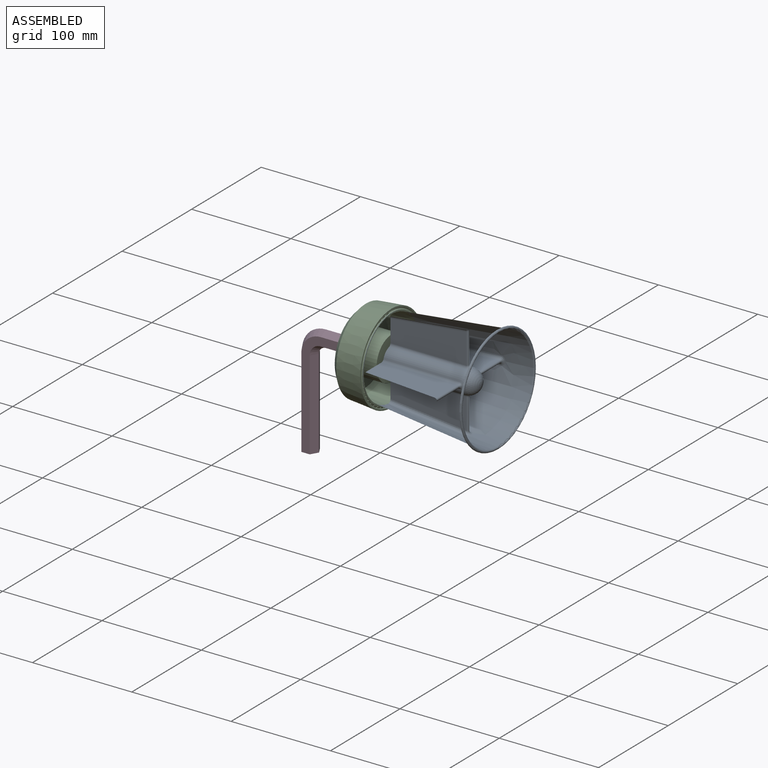
[diagram: assembled view]
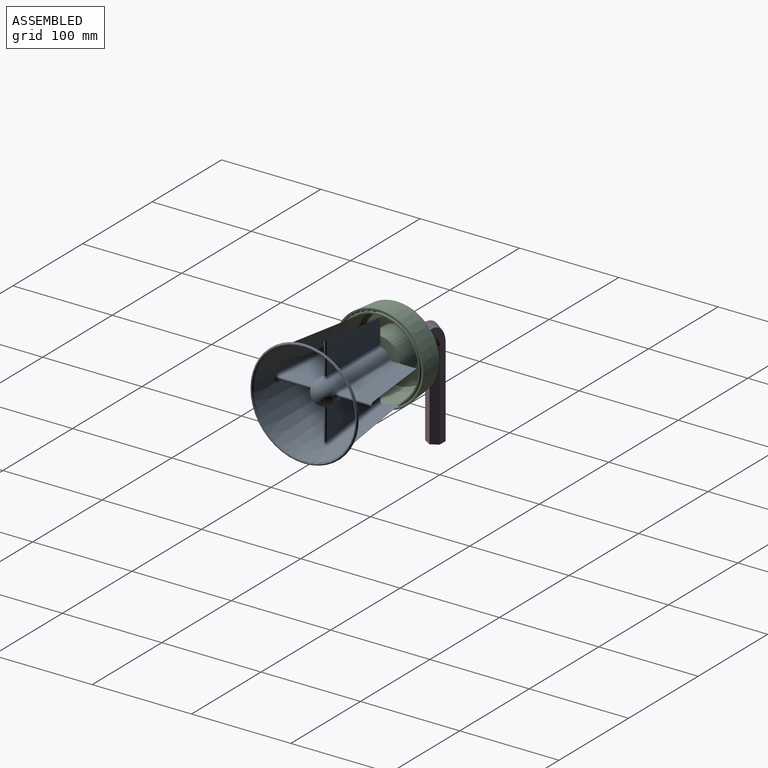
[diagram: assembled view, second angle]
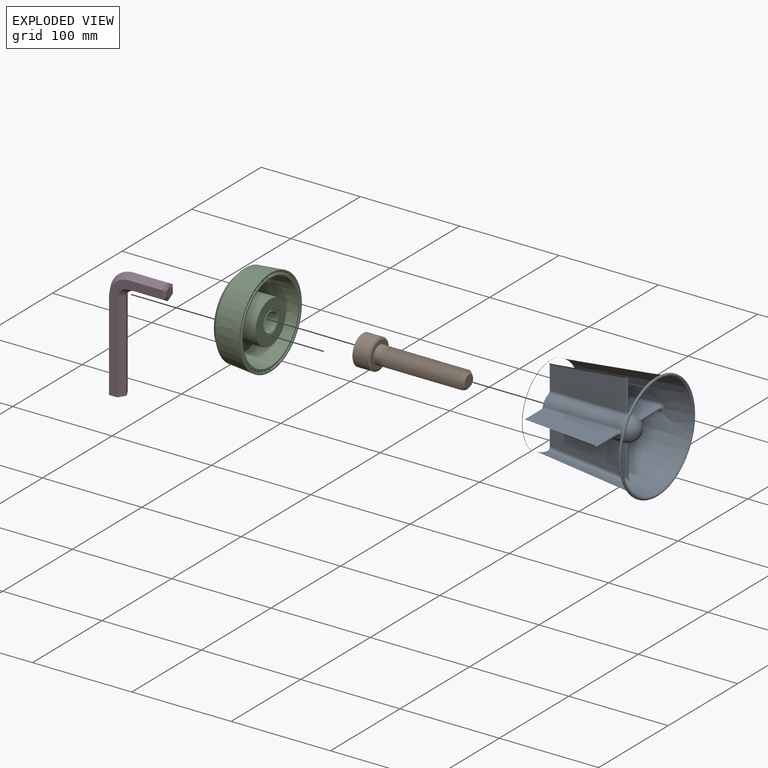
[diagram: exploded view]
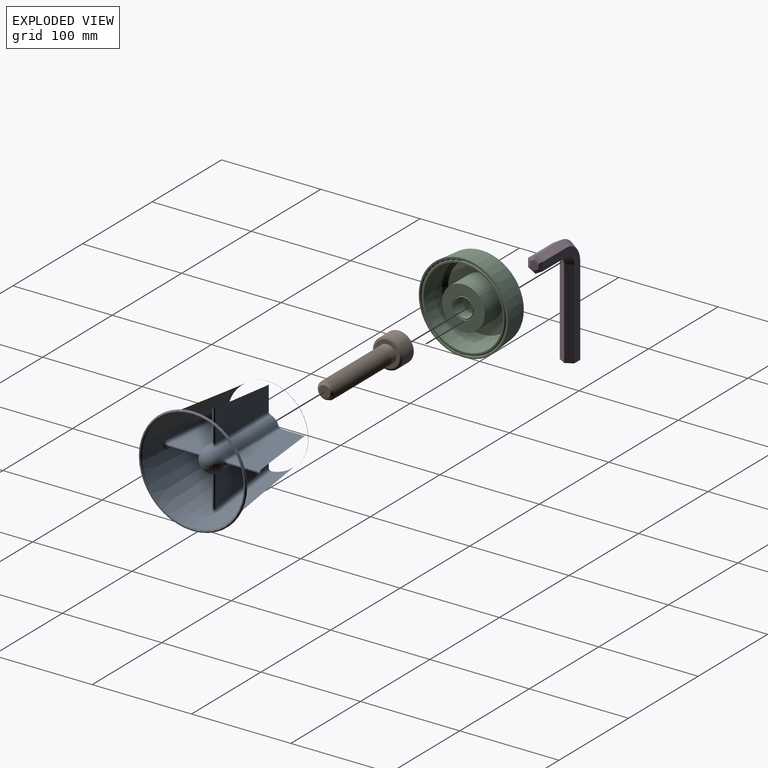
[diagram: exploded view, second angle]
ASSEMBLY  parts=4 mates=3
PART A: 76 faces, bbox 152.4x117.8x117.8 mm
  f0: plane 83.18x83.18mm, normal (-1,0,0), area 820.2mm2, adj f2,f3,f4,f6,f7,f8,f9,f10
  f1: plane 90x90mm, normal (-1,0,0), area 417mm2, adj f17,f56
  f2: cylinder r=12mm len=78mm, axis (1,0,0), area 900.2mm2, adj f0,f5,f24,f25,f48,f49
  f3: cylinder r=12mm len=78mm, axis (1,0,0), area 900.2mm2, adj f0,f5,f40,f41,f45,f46
  f4: cylinder r=12mm len=78mm, axis (1,0,0), area 900.2mm2, adj f0,f5,f27,f28,f29,f30
  f5: sphere r=12mm, area 892.7mm2, adj f2,f3,f4,f6,f26,f31,f43,f47
  f6: cylinder r=12mm len=78mm, axis (1,0,0), area 900.2mm2, adj f0,f5,f32,f33,f42,f44
  f7: plane 76.5x30.56mm, normal (0,0,1), area 2025.8mm2, adj f0,f20,f27,f51
  f8: plane 76.5x30.56mm, normal (0,0,-1), area 2025.8mm2, adj f0,f20,f24,f50
  f9: plane 76.5x30.56mm, normal (0,0,1), area 2025.8mm2, adj f0,f18,f34,f42
  f10: plane 76.5x30.56mm, normal (0,0,-1), area 2025.8mm2, adj f0,f18,f35,f40
  f11: plane 76.5x30.56mm, normal (0,1,0), area 2025.8mm2, adj f0,f19,f38,f48
  f12: plane 76.5x30.56mm, normal (0,-1,0), area 2025.8mm2, adj f0,f19,f37,f45
  f13: plane 76.5x30.56mm, normal (0,-1,0), area 2025.8mm2, adj f0,f21,f32,f54
  f14: plane 76.5x30.56mm, normal (0,1,0), area 2025.8mm2, adj f0,f21,f29,f53
  f15: cone r=51.45mm half-angle=6.1deg, axis (1,0,0), area 27694.2mm2, adj f0,f22,f34,f35,f36,f37,f38,f39
  f16: plane 105.62x105.62mm, normal (1,0,0), area 4.5mm2, adj f22,f23
  f17: cone r=45mm half-angle=5deg, axis (1,0,0), area 33311.8mm2, adj f1,f23
  f18: cylinder r=1.5mm len=31.26mm, axis (0,1,0), area 144.6mm2, adj f9,f10,f36,f41,f43,f44
  f19: cylinder r=1.5mm len=31.26mm, axis (0,0,-1), area 144.6mm2, adj f11,f12,f39,f46,f47,f49
  f20: cylinder r=1.5mm len=31.26mm, axis (0,1,0), area 144.6mm2, adj f7,f8,f25,f26,f28,f52
  f21: cylinder r=1.5mm len=31.26mm, axis (0,0,1), area 144.6mm2, adj f13,f14,f30,f31,f33,f55
  f22: torus R=52.8mm, axis (-1,0,0), area 716.4mm2, adj f15,f16
  f23: torus R=52.81mm, axis (-1,0,0), area 840.7mm2, adj f16,f17
  f24: cylinder r=3mm len=76.5mm, axis (1,0,0), area 290.6mm2, adj f0,f2,f8,f25
  f25: bspline ~2.97x2.72mm, area 3.6mm2, adj f2,f20,f24,f26
  f26: bspline ~7.16x3.73mm, area 21.9mm2, adj f5,f20,f25,f28
  f27: cylinder r=3mm len=76.5mm, axis (1,0,0), area 290.6mm2, adj f0,f4,f7,f28
  f28: bspline ~3.39x3.06mm, area 3.6mm2, adj f4,f20,f26,f27
  f29: cylinder r=3mm len=76.5mm, axis (1,0,0), area 290.6mm2, adj f0,f4,f14,f30
  f30: bspline ~2.97x2.72mm, area 3.6mm2, adj f4,f21,f29,f31
  f31: bspline ~7.16x3.73mm, area 21.9mm2, adj f5,f21,f30,f33
  f32: cylinder r=3mm len=76.5mm, axis (1,0,0), area 290.6mm2, adj f0,f6,f13,f33
  f33: bspline ~3.39x3.06mm, area 3.6mm2, adj f6,f21,f31,f32
  f34: bspline ~152.22x19.45mm, area 387mm2, adj f0,f9,f15,f36
  f35: bspline ~152.22x19.45mm, area 387mm2, adj f0,f10,f15,f36
  f36: bspline ~9.6x5.5mm, area 39.9mm2, adj f15,f18,f34,f35
  f37: bspline ~152.22x19.45mm, area 387mm2, adj f0,f12,f15,f39
  f38: bspline ~152.22x19.45mm, area 387mm2, adj f0,f11,f15,f39
  f39: bspline ~9.6x5.5mm, area 39.9mm2, adj f15,f19,f37,f38
  f40: cylinder r=3mm len=76.5mm, axis (1,0,0), area 290.6mm2, adj f0,f3,f10,f41
  f41: bspline ~3.39x3.06mm, area 3.6mm2, adj f3,f18,f40,f43
  f42: cylinder r=3mm len=76.5mm, axis (1,0,0), area 290.6mm2, adj f0,f6,f9,f44
  f43: bspline ~7.16x3.73mm, area 21.9mm2, adj f5,f18,f41,f44
  f44: bspline ~2.97x2.72mm, area 3.6mm2, adj f6,f18,f42,f43
  f45: cylinder r=3mm len=76.5mm, axis (1,0,0), area 290.6mm2, adj f0,f3,f12,f46
  f46: bspline ~2.97x2.72mm, area 3.6mm2, adj f3,f19,f45,f47
  f47: bspline ~7.16x3.73mm, area 21.9mm2, adj f5,f19,f46,f49
  f48: cylinder r=3mm len=76.5mm, axis (1,0,0), area 290.6mm2, adj f0,f2,f11,f49
  f49: bspline ~3.39x3.06mm, area 3.6mm2, adj f2,f19,f47,f48
  f50: bspline ~152.22x19.45mm, area 387mm2, adj f0,f8,f15,f52
  f51: bspline ~152.22x19.45mm, area 387mm2, adj f0,f7,f15,f52
  f52: bspline ~9.6x5.5mm, area 39.9mm2, adj f15,f20,f50,f51
  f53: bspline ~152.22x19.45mm, area 387mm2, adj f0,f14,f15,f55
  f54: bspline ~152.22x19.45mm, area 387mm2, adj f0,f13,f15,f55
  f55: bspline ~9.6x5.5mm, area 39.9mm2, adj f15,f21,f53,f54
  f56: torus R=42.5mm, axis (1,0,0), area 838.9mm2, adj f0,f1
  f57: torus R=10.5mm, axis (1,0,0), area 103.6mm2, adj f0,f75
  f58: cone r=0mm half-angle=59deg, axis (-1,0,0), area 262.8mm2, adj f59,f60,f61,f62,f63,f64
  f59: cone r=0mm half-angle=59deg, axis (-1,0,0), area 9.9mm2, adj f58,f60,f61
  f60: cylinder r=9.11mm len=18.22mm, axis (-1,0,0), area 21.5mm2, adj f58,f59,f64,f65
  f61: bspline ~18.41x18.22mm, area 15.1mm2, adj f58,f59,f62,f65
  f62: cylinder r=7.38mm len=74.92mm, axis (1,0,0), area 844.6mm2, adj f58,f61,f63,f65,f66,f68
  f63: bspline ~75.44x20.78mm, area 2355.9mm2, adj f58,f62,f64,f69
  f64: bspline ~72.69x21.03mm, area 310.2mm2, adj f58,f60,f63,f70,f71
  f65: plane 1.73x1.5mm, normal (0,0,1), area 1.5mm2, adj f60,f61,f62,f66,f71
  f66: bspline ~74.94x20.78mm, area 2367.5mm2, adj f62,f65,f67,f71
  f67: bspline ~20.6x19.72mm, area 53.4mm2, adj f66,f68,f72,f73
  f68: bspline ~17.35x16.48mm, area 38.9mm2, adj f62,f67,f69,f73
  f69: bspline ~20.6x19.72mm, area 53.5mm2, adj f63,f68,f70,f73,f74
  f70: bspline ~3.54x0.7mm, area 0.4mm2, adj f64,f69,f74
  f71: bspline ~74.19x21.03mm, area 316.9mm2, adj f64,f65,f66,f72,f73,f74
  f72: bspline ~3.54x0.7mm, area 0.4mm2, adj f67,f71,f73
  f73: cylinder r=9.11mm len=18.22mm, axis (-1,0,0), area 153.6mm2, adj f67,f68,f69,f71,f72,f74,f75
  f74: cylinder r=9.11mm len=9.11mm, axis (-1,0,0), area 3.3mm2, adj f69,f70,f71,f73
  f75: plane 20x20mm, normal (-1,0,0), area 53.5mm2, adj f57,f73
PART B: 56 faces, bbox 108x30x30 mm
  f0: plane 12x12mm, normal (1,0,0), area 113.1mm2, adj f1
  f1: cone r=9mm half-angle=45deg, axis (-1,0,0), area 117.7mm2, adj f0,f2,f50,f55
  f2: cone r=9mm half-angle=45deg, axis (-1,0,0), area 13.1mm2, adj f1,f3,f4,f54,f55
  f3: cylinder r=9mm len=3.44mm, axis (1,0,0), area 0.3mm2, adj f2,f4,f55
  f4: cylinder r=9mm len=18mm, axis (1,0,0), area 20.8mm2, adj f2,f3,f5,f54,f55
  f5: cylinder r=9mm len=18mm, axis (1,0,0), area 21.2mm2, adj f4,f6,f54,f55
  f6: cylinder r=9mm len=18mm, axis (1,0,0), area 21.2mm2, adj f5,f7,f54,f55
  f7: cylinder r=9mm len=18mm, axis (1,0,0), area 21.2mm2, adj f6,f8,f54,f55
  f8: cylinder r=9mm len=18mm, axis (1,0,0), area 21.2mm2, adj f7,f9,f54,f55
  f9: cylinder r=9mm len=18mm, axis (1,0,0), area 21.2mm2, adj f8,f10,f54,f55
  f10: cylinder r=9mm len=18mm, axis (1,0,0), area 21.2mm2, adj f9,f11,f54,f55
  f11: cylinder r=9mm len=18mm, axis (1,0,0), area 21.2mm2, adj f10,f12,f54,f55
  f12: cylinder r=9mm len=18mm, axis (1,0,0), area 21.2mm2, adj f11,f13,f54,f55
  f13: cylinder r=9mm len=18mm, axis (1,0,0), area 21.2mm2, adj f12,f14,f54,f55
  f14: cylinder r=9mm len=18mm, axis (1,0,0), area 21.2mm2, adj f13,f15,f54,f55
  f15: cylinder r=9mm len=18mm, axis (1,0,0), area 21.2mm2, adj f14,f16,f54,f55
  f16: cylinder r=9mm len=18mm, axis (1,0,0), area 21.2mm2, adj f15,f17,f54,f55
  f17: cylinder r=9mm len=18mm, axis (1,0,0), area 21.2mm2, adj f16,f18,f54,f55
  f18: cylinder r=9mm len=18mm, axis (1,0,0), area 21.2mm2, adj f17,f19,f54,f55
  f19: cylinder r=9mm len=18mm, axis (1,0,0), area 21.2mm2, adj f18,f20,f54,f55
  f20: cylinder r=9mm len=18mm, axis (1,0,0), area 21.2mm2, adj f19,f21,f54,f55
  f21: cylinder r=9mm len=18mm, axis (1,0,0), area 21.2mm2, adj f20,f22,f54,f55
  f22: cylinder r=9mm len=18mm, axis (1,0,0), area 21.2mm2, adj f21,f23,f54,f55
  f23: cylinder r=9mm len=18mm, axis (1,0,0), area 21.2mm2, adj f22,f24,f54,f55
  f24: cylinder r=9mm len=18mm, axis (1,0,0), area 21.2mm2, adj f23,f25,f54,f55
  f25: cylinder r=9mm len=18mm, axis (1,0,0), area 21.2mm2, adj f24,f26,f54,f55
  f26: cylinder r=9mm len=18mm, axis (1,0,0), area 21.2mm2, adj f25,f27,f54,f55
  f27: cylinder r=9mm len=18mm, axis (1,0,0), area 21.2mm2, adj f26,f28,f54,f55
  f28: cylinder r=9mm len=18mm, axis (1,0,0), area 21.2mm2, adj f27,f29,f54,f55
  f29: cylinder r=9mm len=18mm, axis (1,0,0), area 28.2mm2, adj f28,f30,f53,f54,f55
  f30: cylinder r=9mm len=18mm, axis (1,0,0), area 410.8mm2, adj f29,f31,f51,f52,f53,f54
  f31: plane 26.1x26.1mm, normal (1,0,0), area 280.7mm2, adj f30,f32
  f32: cone r=15mm half-angle=60deg, axis (-1,0,0), area 198.3mm2, adj f31,f33
  f33: cylinder r=15mm len=30mm, axis (1,0,0), area 1484.4mm2, adj f32,f34
  f34: cone r=13.05mm half-angle=60deg, axis (1,0,0), area 198.3mm2, adj f33,f35
  f35: plane 26.1x26.1mm, normal (-1,0,0), area 213.1mm2, adj f34,f36
  f36: cone r=10.12mm half-angle=60deg, axis (-1,0,0), area 134.1mm2, adj f35,f37,f38,f39,f40,f41,f42
  f37: plane 12.8x8.91mm, normal (0,1,0), area 109.9mm2, adj f36,f38,f42,f48
  f38: plane 12.79x7.71mm, normal (0,0.5,0.87), area 109.9mm2, adj f36,f37,f39,f47
  f39: plane 12.79x7.71mm, normal (0,-0.5,0.87), area 109.9mm2, adj f36,f38,f40,f46
  f40: plane 12.8x8.91mm, normal (0,-1,0), area 109.9mm2, adj f36,f39,f41,f45
  f41: plane 12.79x7.71mm, normal (0,-0.5,-0.87), area 109.9mm2, adj f36,f40,f42,f44
  f42: plane 12.79x7.71mm, normal (0,0.5,-0.87), area 109.9mm2, adj f36,f37,f41,f43
  f43: plane 7.71x4.45mm, normal (1,0,0), area 7.2mm2, adj f42,f49
  f44: plane 7.71x4.45mm, normal (1,0,0), area 7.2mm2, adj f41,f49
  f45: plane 8.9x1.19mm, normal (1,0,0), area 7.2mm2, adj f40,f49
  f46: plane 7.71x4.45mm, normal (1,0,0), area 7.2mm2, adj f39,f49
  f47: plane 7.71x4.45mm, normal (1,0,0), area 7.2mm2, adj f38,f49
  f48: plane 8.9x1.19mm, normal (1,0,0), area 7.2mm2, adj f37,f49
  f49: cone r=8.9mm half-angle=60deg, axis (-1,0,0), area 287.5mm2, adj f43,f44,f45,f46,f47,f48
  f50: bspline ~80.92x15.11mm, area 1096mm2, adj f1,f52,f54,f55
  f51: bspline ~20.76x19.93mm, area 46.8mm2, adj f30,f52,f54
  f52: bspline ~17.49x16.65mm, area 47.2mm2, adj f30,f50,f51,f53
  f53: bspline ~20.75x19.92mm, area 46.8mm2, adj f29,f30,f52,f55
  f54: bspline ~80.94x18mm, area 2566mm2, adj f2,f4,f5,f6,f7,f8,f9,f10
  f55: bspline ~80.2x17.97mm, area 2507.9mm2, adj f1,f2,f3,f4,f5,f6,f7,f8
PART C: 16 faces, bbox 32.5x94.2x94.2 mm
  f0: plane 43x43mm, normal (1,0,0), area 1072.1mm2, adj f12,f15
  f1: plane 20x20mm, normal (1,0,0), area 33.6mm2, adj f6,f15
  f2: plane 90x90mm, normal (1,0,0), area 417mm2, adj f5,f14
  f3: plane 83x83mm, normal (1,0,0), area 388.9mm2, adj f11,f14
  f4: plane 72.44x72.44mm, normal (-1,0,0), area 3265.6mm2, adj f8,f9
  f5: cone r=42.22mm half-angle=5deg, axis (1,0,0), area 7145.1mm2, adj f2,f9
  f6: cylinder r=9.45mm len=18.9mm, axis (-1,0,0), area 712.5mm2, adj f1,f7
  f7: plane 33x33mm, normal (-1,0,0), area 574.7mm2, adj f6,f8
  f8: cylinder r=16.5mm len=33mm, axis (-1,0,0), area 2052.7mm2, adj f4,f7
  f9: cone r=42.74mm half-angle=47.5deg, axis (1,0,0), area 2194.6mm2, adj f4,f5
  f10: plane 68.55x68.55mm, normal (1,0,0), area 2238.1mm2, adj f12,f13
  f11: cone r=37.24mm half-angle=5deg, axis (1,0,0), area 5761.6mm2, adj f3,f13
  f12: cylinder r=21.5mm len=43mm, axis (-1,0,0), area 3620.4mm2, adj f0,f10
  f13: cone r=39.36mm half-angle=47.5deg, axis (1,0,0), area 1124.8mm2, adj f10,f11
  f14: torus R=42.5mm, axis (1,0,0), area 838.9mm2, adj f2,f3
  f15: torus R=10.5mm, axis (1,0,0), area 103.6mm2, adj f0,f1
PART D: 22 faces, bbox 59.9x14.6x113.9 mm
  f0: plane 9.99x8.65mm, normal (1,0,0), area 64.8mm2, adj f16,f17,f18,f19,f20,f21
  f1: plane 16.92x14.65mm, normal (0,0,-1), area 185.8mm2, adj f2,f5,f12,f13,f14,f15
  f2: plane 109.65x53.92mm, normal (0,1,0), area 1255.9mm2, adj f1,f3,f7,f8,f11,f12,f15,f18
  f3: plane 34.27x7.32mm, normal (0,0.5,-0.87), area 289.8mm2, adj f2,f4,f8,f16
  f4: plane 34.27x7.32mm, normal (0,-0.5,-0.87), area 289.8mm2, adj f3,f5,f9,f17
  f5: plane 109.65x53.92mm, normal (0,-1,0), area 1255.9mm2, adj f1,f4,f6,f9,f10,f13,f14,f19
  f6: plane 34.27x7.32mm, normal (0,-0.5,0.87), area 289.8mm2, adj f5,f7,f10,f21
  f7: plane 34.27x7.32mm, normal (0,0.5,0.87), area 289.8mm2, adj f2,f6,f11,f20
  f8: cone r=11.19mm half-angle=30deg, axis (0,1,0), area 120.6mm2, adj f2,f3,f9,f12
  f9: cone r=6.96mm half-angle=30deg, axis (0,-1,0), area 120.6mm2, adj f4,f5,f8,f13
  f10: cone r=19.65mm half-angle=30deg, axis (0,1,0), area 289.1mm2, adj f5,f6,f11,f14
  f11: cone r=23.88mm half-angle=30deg, axis (0,-1,0), area 289.1mm2, adj f2,f7,f10,f15
  f12: plane 90x7.32mm, normal (0.87,0.5,0), area 761.2mm2, adj f1,f2,f8,f13
  f13: plane 90x7.32mm, normal (0.87,-0.5,0), area 761.2mm2, adj f1,f5,f9,f12
  f14: plane 90x7.32mm, normal (-0.87,-0.5,0), area 761.2mm2, adj f1,f5,f10,f15
  f15: plane 90x7.32mm, normal (-0.87,0.5,0), area 761.2mm2, adj f1,f2,f11,f14
  f16: plane 7.32x5.96mm, normal (0.87,0.25,-0.43), area 23.3mm2, adj f0,f3,f17,f18
  f17: plane 7.32x5.96mm, normal (0.87,-0.25,-0.43), area 23.3mm2, adj f0,f4,f16,f19
  f18: plane 8.46x3mm, normal (0.87,0.5,0), area 23.3mm2, adj f0,f2,f16,f20
  f19: plane 8.46x3mm, normal (0.87,-0.5,0), area 23.3mm2, adj f0,f5,f17,f21
  f20: plane 7.32x5.96mm, normal (0.87,0.25,0.43), area 23.3mm2, adj f0,f7,f18,f21
  f21: plane 7.32x5.96mm, normal (0.87,-0.25,0.43), area 23.3mm2, adj f0,f6,f19,f20
PLACE A rot(axis=(-1,0,0),90deg) t=(-63.45,-35.94,9.09)mm
PLACE B rot(axis=(1,0,0),180deg) t=(-93.45,-35.94,9.09)mm
PLACE C rot(axis=(-1,0,0),90deg) t=(-95.25,-35.94,9.09)mm
PLACE D t=(-93.45,-35.94,9.09)mm
MATE parallel A.f2 <-> C.f5  axis (-1,0,0) through (-63.45,-35.94,9.09)mm
MATE parallel D.f0 <-> B.f1  axis (1,0,0) through (-93.45,-35.94,9.09)mm
MATE parallel C.f5 <-> B.f1  axis (-1,0,0) through (-75.45,-35.94,9.09)mm
